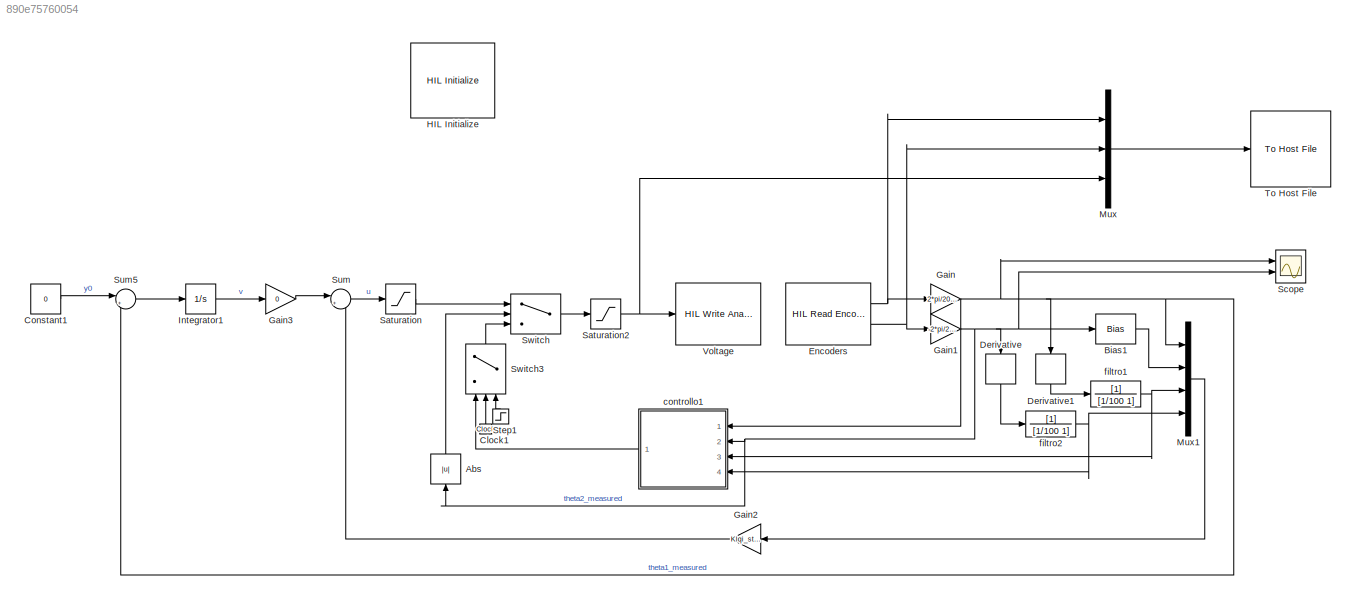
MODEL slx_890e75760054
KIND model
CONFIG AbsTol = auto
CONFIG EnableMultiTasking = on
CONFIG FixedStep = 0.002
CONFIG MaxStep = auto
CONFIG MinStep = auto
CONFIG PostLoadFcn = qc_set_target_type(getConfigSet(bdroot, 'QUARC Default Target Configuration'));
CONFIG RelTol = 1e-3
CONFIG SampleTimeConstraint = Unconstrained
CONFIG Solver = ode1
CONFIG SolverName = ode1
CONFIG StartTime = 0.0
CONFIG StopTime = inf
BLOCK [Abs] Abs
  SaturateOnIntegerOverflow = off
BLOCK [Bias] Bias1
  Bias = -pi
  SaturateOnIntegerOverflow = off
BLOCK [Clock] Clock1
BLOCK [Constant] Constant1
  Value = 0
BLOCK [Derivative] Derivative
BLOCK [Derivative] Derivative1
BLOCK [Reference] Encoders  REF=quarc_library/Data Acquisition/Generic/Timebases/HIL Read Encoder
Timebase
  AttributesFormatString = (%<object_name>)
  Ports = [0, 2]
  SourceBlock = quarc_library/Data Acquisition/Generic/Timebases/HIL Read Encoder\nTimebase
  SourceProductName = QUARC Targets
  SourceType = HIL Read Encoder Timebase
  UserDataPersistent = on
BLOCK [Gain] Gain
  Gain = 2*pi/2048
  OutDataTypeStr = Inherit: Inherit via internal rule
  ParamDataTypeStr = Inherit: Inherit via internal rule
  SaturateOnIntegerOverflow = off
BLOCK [Gain] Gain1
  Gain = -2*pi/2048
  OutDataTypeStr = Inherit: Inherit via internal rule
  ParamDataTypeStr = Inherit: Inherit via internal rule
  SaturateOnIntegerOverflow = off
BLOCK [Gain] Gain2
  Gain = Klqi_state
  Multiplication = Matrix(K*u)
  OutDataTypeStr = Inherit: Inherit via internal rule
  ParamDataTypeStr = Inherit: Inherit via internal rule
  SaturateOnIntegerOverflow = off
BLOCK [Gain] Gain3
  Gain = 0
  Multiplication = Matrix(K*u)
  OutDataTypeStr = Inherit: Inherit via internal rule
  ParamDataTypeStr = Inherit: Inherit via internal rule
  SaturateOnIntegerOverflow = off
BLOCK [Reference] HIL Initialize  REF=quarc_library/Data Acquisition/Generic/Configuration/HIL Initialize
  AttributesFormatString = %<object_name> (%<board_type>-%<board_number>)
  Ports = []
  Priority = -99
  SourceBlock = quarc_library/Data Acquisition/Generic/Configuration/HIL Initialize
  SourceProductName = QUARC Targets
  SourceType = HIL Initialize
  UserDataPersistent = on
BLOCK [Integrator] Integrator1
  Ports = [1, 1]
BLOCK [Mux] Mux
  DisplayOption = bar
  Inputs = 3
  Ports = [3, 1]
BLOCK [Mux] Mux1
  DisplayOption = bar
  Ports = [4, 1]
BLOCK [Saturate] Saturation
  InputPortMap = u0
  LowerLimit = -10
  Ports = [1, 1]
  UpperLimit = 10
BLOCK [Saturate] Saturation2
  InputPortMap = u0
  LowerLimit = -10
  Ports = [1, 1]
  UpperLimit = 10
  ZeroCross = off
BLOCK [Scope] Scope
  Floating = off
  NumInputPorts = 2
  Ports = [2]
  ScopeSpecificationString = Simulink.scopes.TimeScopeBlockCfg('CurrentConfiguration', extmgr.ConfigurationSet(extmgr.Configuration('Core','General UI',true),extmgr.Configuration('Core','Source UI',true),extmgr.Configuration('Sources','WiredSimulink',true,'DataLoggingVariableName','ScopeData1'),extmgr.Configuration('Visuals','Time Domain',true,'SerializedDisplays',{struct('MinYLimReal','-357.01409','MaxYLimReal','46.2848','YL...<+1480ch>
BLOCK [Step] Step1
  After = -1
  SampleTime = 0
  Time = 0.1
BLOCK [Sum] Sum
  IconShape = round
  InputSameDT = off
  Inputs = |+-
  OutDataTypeStr = Inherit: Inherit via internal rule
  Ports = [2, 1]
  SaturateOnIntegerOverflow = off
BLOCK [Sum] Sum5
  IconShape = round
  InputSameDT = off
  Inputs = |+-
  OutDataTypeStr = Inherit: Inherit via internal rule
  Ports = [2, 1]
  SaturateOnIntegerOverflow = off
BLOCK [Switch] Switch
  Criteria = u2 > Threshold
  InputSameDT = off
  SaturateOnIntegerOverflow = off
  Threshold = 15/18*pi
BLOCK [Switch] Switch3
  Criteria = u2 > Threshold
  InputSameDT = off
  SaturateOnIntegerOverflow = off
  Threshold = 0.5
BLOCK [Reference] To Host File  REF=quarc_library/Sinks/To Host/To Host File
  AttributesFormatString = %<final_file_name>
  Ports = [1]
  SourceBlock = quarc_library/Sinks/To Host/To Host File
  SourceProductName = QUARC Targets
  SourceType = To Host File
BLOCK [Reference] Voltage  REF=quarc_library/Data Acquisition/Generic/Immediate I//O/HIL Write Analog
  AttributesFormatString = (%<object_name>)
  Ports = [1]
  SourceBlock = quarc_library/Data Acquisition/Generic/Immediate I//O/HIL Write Analog
  SourceProductName = QUARC Targets
  SourceType = HIL Write Analog
  UserDataPersistent = on
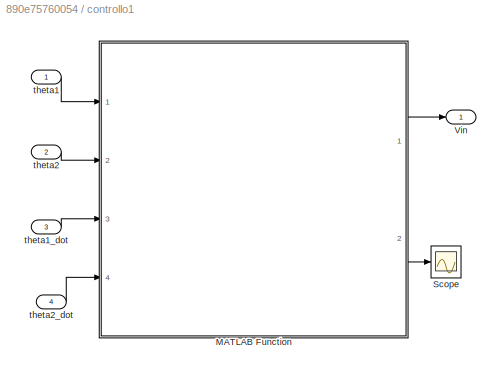
BLOCK [SubSystem] controllo1
  Ports = [4, 1]
  RequestExecContextInheritance = off
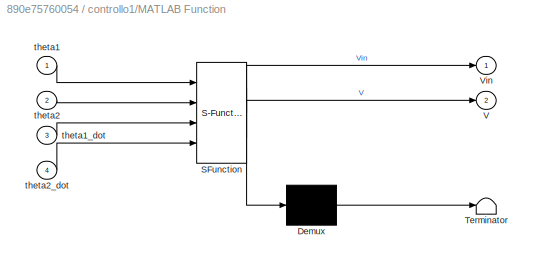
BLOCK [SubSystem] controllo1/MATLAB Function
  ErrorFcn = Stateflow.Translate.translate
  PermitHierarchicalResolution = ExplicitOnly
  Ports = [4, 2]
  RequestExecContextInheritance = off
  SFBlockType = MATLAB Function
  TreatAsAtomicUnit = on
BLOCK [Demux] controllo1/MATLAB Function/ Demux 
  DisplayOption = bar
  Outputs = 1
  Ports = [1, 1]
BLOCK [S-Function] controllo1/MATLAB Function/ SFunction 
  EnableBusSupport = on
  FunctionName = sf_sfun
  Parameters = Pars
  PortCounts = [4 3]
  Ports = [4, 3]
  SFcnIsStateOwnerBlock = off
  SFunctionDeploymentMode = off
  Tag = Stateflow S-Function 2
BLOCK [Terminator] controllo1/MATLAB Function/ Terminator 
BLOCK [Outport] controllo1/MATLAB Function/V
  IconDisplay = Port number
  Port = 2
BLOCK [Outport] controllo1/MATLAB Function/Vin
  IconDisplay = Port number
BLOCK [Inport] controllo1/MATLAB Function/theta1
  IconDisplay = Port number
BLOCK [Inport] controllo1/MATLAB Function/theta1_dot
  IconDisplay = Port number
  Port = 3
BLOCK [Inport] controllo1/MATLAB Function/theta2
  IconDisplay = Port number
  Port = 2
BLOCK [Inport] controllo1/MATLAB Function/theta2_dot
  IconDisplay = Port number
  Port = 4
BLOCK [Scope] controllo1/Scope
  Floating = off
  NumInputPorts = 1
  Ports = [1]
  ScopeSpecificationString = Simulink.scopes.TimeScopeBlockCfg('CurrentConfiguration', extmgr.ConfigurationSet(extmgr.Configuration('Core','General UI',true),extmgr.Configuration('Core','Source UI',true),extmgr.Configuration('Sources','WiredSimulink',true,'DataLoggingVariableName','ScopeData3'),extmgr.Configuration('Visuals','Time Domain',true,'SerializedDisplays',{struct('MinYLimReal','-0.00007','MaxYLimReal','0.00063','YLab...<+1420ch>
BLOCK [Outport] controllo1/Vin
  IconDisplay = Port number
BLOCK [Inport] controllo1/theta1
  IconDisplay = Port number
BLOCK [Inport] controllo1/theta1_dot
  IconDisplay = Port number
  Port = 3
BLOCK [Inport] controllo1/theta2
  IconDisplay = Port number
  Port = 2
BLOCK [Inport] controllo1/theta2_dot
  IconDisplay = Port number
  Port = 4
BLOCK [TransferFcn] filtro1 
  Denominator = [1/100 1]
BLOCK [TransferFcn] filtro2
  Denominator = [1/100 1]
LINE Abs:1 -> Switch:2
LINE Bias1:1 -> Mux1:2
LINE Clock1:1 -> Switch3:2
LINE Constant1:1 -> Sum5:1
LINE Derivative1:1 -> filtro1 :1
LINE Derivative:1 -> filtro2:1
NET Encoders:1 -> Gain:1, Mux:1
NET Encoders:2 -> Gain1:1, Mux:2
NET Gain1:1 -> Abs:1, Bias1:1, Derivative:1, Scope:2, controllo1:2
LINE Gain2:1 -> Sum:2
LINE Gain3:1 -> Sum:1
NET Gain:1 -> Derivative1:1, Mux1:1, Scope:1, Sum5:2, controllo1:1
LINE Integrator1:1 -> Gain3:1
LINE Mux1:1 -> Gain2:1
LINE Mux:1 -> To Host File:1
NET Saturation2:1 -> Mux:3, Voltage:1
LINE Saturation:1 -> Switch:1
LINE Step1:1 -> Switch3:3
LINE Sum5:1 -> Integrator1:1
LINE Sum:1 -> Saturation:1
LINE Switch3:1 -> Switch:3
LINE Switch:1 -> Saturation2:1
LINE controllo1/MATLAB Function:1 -> controllo1/Vin:1
LINE controllo1/MATLAB Function:2 -> controllo1/Scope:1
LINE controllo1/theta1:1 -> controllo1/MATLAB Function:1
LINE controllo1/theta1_dot:1 -> controllo1/MATLAB Function:3
LINE controllo1/theta2:1 -> controllo1/MATLAB Function:2
LINE controllo1/theta2_dot:1 -> controllo1/MATLAB Function:4
LINE controllo1:1 -> Switch3:1
NET filtro1 :1 -> Mux1:3, controllo1:3
NET filtro2:1 -> Mux1:4, controllo1:4
note: NET lines group one-source signal fan-out (src -> all destinations, sorted); 1:1 wires keep LINE
CHART controllo1/MATLAB Function states=1 transitions=1
  STATE_LABEL 'eML_blk_kernel()'
  STATE_LABEL 'SCRIPT:\nfunction [Vin, V]  = fcn(theta1, theta2, theta1_dot, theta2_dot, Pars)\n   const = 1000*0.9;\n   k1 = Pars.Jeq + Pars.m2*(Pars.l1^2 + Pars.x2^2*sin(theta2)^2);\n   k2 = Pars.m2*Pars.l1*Pars.x2*cos(theta2);\n   % attenzione k3 diverso da funzione modello non lineare \n   k3 = 2*Pars.m2*Pars.x2^2*sin(theta2)*cos(theta2)*theta1_dot*theta2_dot - Pars.m2*Pars.l1*Pars.x2*sin(theta2)*theta2_dot^2 +Par...<+1035ch>'
